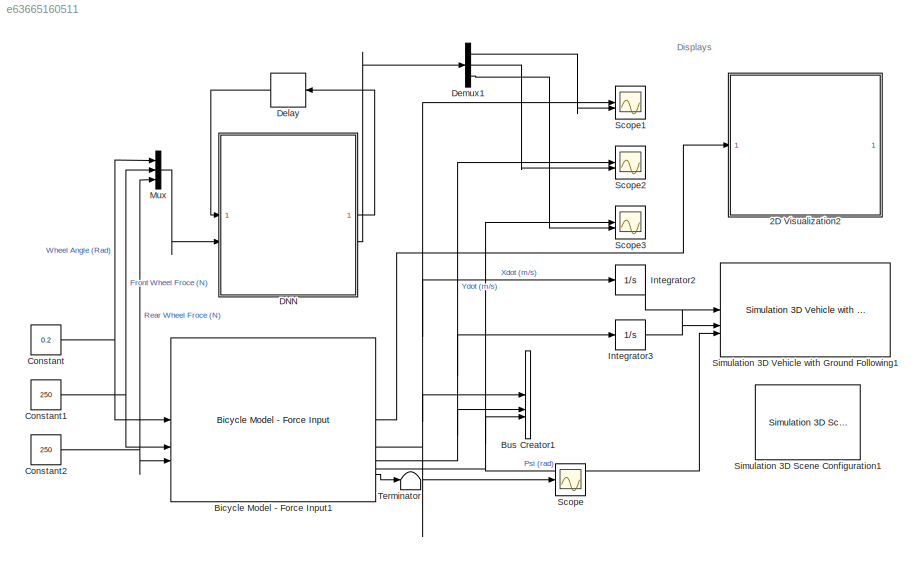
MODEL slx_e63665160511
KIND model
CONFIG AbsTol = auto
CONFIG EnableMultiTasking = off
CONFIG FixedStep = 0.01
CONFIG MaxStep = auto
CONFIG MinStep = auto
CONFIG RelTol = 1e-3
CONFIG SampleTimeConstraint = Unconstrained
CONFIG SolverName = FixedStepAuto
CONFIG StartTime = 0.0
CONFIG StopTime = 10
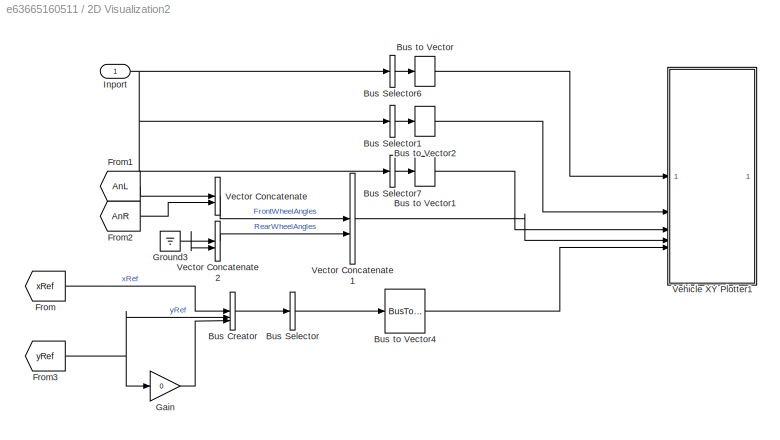
BLOCK [SubSystem] 2D Visualization2
BLOCK [BusCreator] 2D Visualization2/Bus Creator
  DisplayOption = bar
  InheritFromInputs = on
  Inputs = 3
BLOCK [BusSelector] 2D Visualization2/Bus Selector
  OutputAsBus = on
  OutputSignals = xRef,yRef,signal3
BLOCK [BusSelector] 2D Visualization2/Bus Selector1
  OutputAsBus = on
  OutputSignals = InertFrm.Cg.Ang.phi,InertFrm.Cg.Ang.theta,InertFrm.Cg.Ang.psi
BLOCK [BusSelector] 2D Visualization2/Bus Selector6
  OutputAsBus = on
  OutputSignals = InertFrm.Geom.Disp.X,InertFrm.Geom.Disp.Y,InertFrm.Geom.Disp.Z
BLOCK [BusSelector] 2D Visualization2/Bus Selector7
  OutputAsBus = on
  OutputSignals = InertFrm.Geom.Vel.Xdot,InertFrm.Geom.Vel.Ydot,InertFrm.Geom.Vel.Zdot
BLOCK [BusToVector] 2D Visualization2/Bus to Vector
BLOCK [BusToVector] 2D Visualization2/Bus to Vector1
BLOCK [BusToVector] 2D Visualization2/Bus to Vector2
BLOCK [BusToVector] 2D Visualization2/Bus to Vector4
BLOCK [From] 2D Visualization2/From
  GotoTag = xRef
BLOCK [From] 2D Visualization2/From1
  GotoTag = AnL
BLOCK [From] 2D Visualization2/From2
  GotoTag = AnR
BLOCK [From] 2D Visualization2/From3
  GotoTag = yRef
BLOCK [Gain] 2D Visualization2/Gain
  Gain = 0
BLOCK [Ground] 2D Visualization2/Ground3
BLOCK [Inport] 2D Visualization2/Inport
BLOCK [Concatenate] 2D Visualization2/Vector Concatenate
BLOCK [Concatenate] 2D Visualization2/Vector Concatenate1
BLOCK [Concatenate] 2D Visualization2/Vector Concatenate2
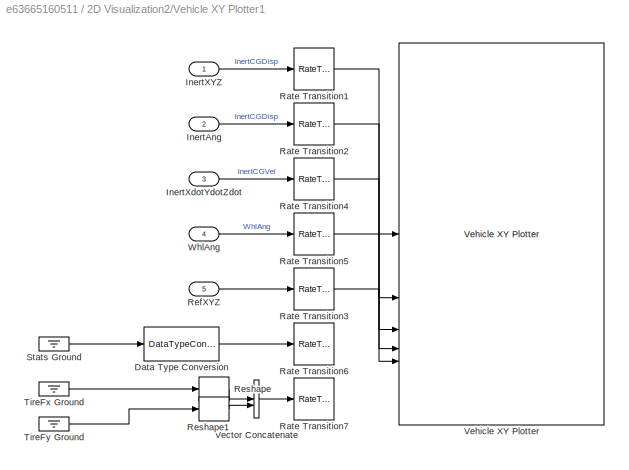
BLOCK [SubSystem] 2D Visualization2/Vehicle XY Plotter1
BLOCK [DataTypeConversion] 2D Visualization2/Vehicle XY Plotter1/Data Type Conversion
  OutDataTypeStr = double
  RndMeth = Floor
  SaturateOnIntegerOverflow = off
BLOCK [Inport] 2D Visualization2/Vehicle XY Plotter1/InertAng
  Port = 2
BLOCK [Inport] 2D Visualization2/Vehicle XY Plotter1/InertXYZ
BLOCK [Inport] 2D Visualization2/Vehicle XY Plotter1/InertXdotYdotZdot
  Port = 3
BLOCK [RateTransition] 2D Visualization2/Vehicle XY Plotter1/Rate Transition1
  Deterministic = off
  OutPortSampleTime = pltDT
BLOCK [RateTransition] 2D Visualization2/Vehicle XY Plotter1/Rate Transition2
  Deterministic = off
  OutPortSampleTime = pltDT
BLOCK [RateTransition] 2D Visualization2/Vehicle XY Plotter1/Rate Transition3
  Deterministic = off
  OutPortSampleTime = pltDT
BLOCK [RateTransition] 2D Visualization2/Vehicle XY Plotter1/Rate Transition4
  Deterministic = off
  OutPortSampleTime = pltDT
BLOCK [RateTransition] 2D Visualization2/Vehicle XY Plotter1/Rate Transition5
  Deterministic = off
  OutPortSampleTime = pltDT
BLOCK [RateTransition] 2D Visualization2/Vehicle XY Plotter1/Rate Transition6
  Deterministic = off
  OutPortSampleTime = pltDT
BLOCK [RateTransition] 2D Visualization2/Vehicle XY Plotter1/Rate Transition7
  Deterministic = off
  OutPortSampleTime = pltDT
BLOCK [Inport] 2D Visualization2/Vehicle XY Plotter1/RefXYZ
  Port = 5
BLOCK [Reshape] 2D Visualization2/Vehicle XY Plotter1/Reshape
  OutputDimensionality = Row vector (2-D)
BLOCK [Reshape] 2D Visualization2/Vehicle XY Plotter1/Reshape1
  OutputDimensionality = Row vector (2-D)
BLOCK [Ground] 2D Visualization2/Vehicle XY Plotter1/Stats Ground
BLOCK [Ground] 2D Visualization2/Vehicle XY Plotter1/TireFx Ground
BLOCK [Ground] 2D Visualization2/Vehicle XY Plotter1/TireFy Ground
BLOCK [Concatenate] 2D Visualization2/Vehicle XY Plotter1/Vector Concatenate
  Mode = Multidimensional array
BLOCK [Reference] 2D Visualization2/Vehicle XY Plotter1/Vehicle XY Plotter  REF=vehdynlibviscommon/Vehicle XY Plotter
  SourceBlock = vehdynlibviscommon/Vehicle XY Plotter
  SourceType = Vehicle XY Plotter
BLOCK [Inport] 2D Visualization2/Vehicle XY Plotter1/WhlAng
  Port = 4
BLOCK [Reference] Bicycle Model - Force Input1  REF=autolibshared/Bicycle Model - Force Input
  LibrarySourceBlock = drivingscenarioandsensors/Bicycle Model - Force Input
  SourceBlock = autolibshared/Bicycle Model - Force Input
  SourceType = Vehicle Body 3DOF Lateral
BLOCK [BusCreator] Bus Creator1
  DisplayOption = bar
  InheritFromInputs = on
  Inputs = 3
BLOCK [Constant] Constant
  Value = 0.2
BLOCK [Constant] Constant1
  Value = 250
BLOCK [Constant] Constant2
  Value = 250
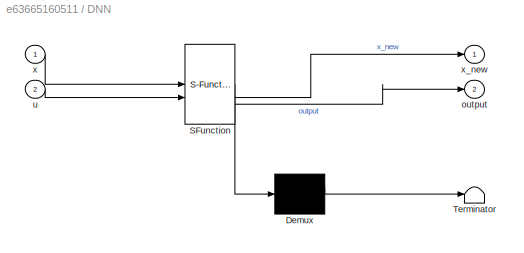
BLOCK [SubSystem] DNN
  ErrorFcn = Stateflow.Translate.translate
  PermitHierarchicalResolution = ExplicitOnly
  SFBlockType = MATLAB Function
  TreatAsAtomicUnit = on
BLOCK [Demux] DNN/ Demux 
  Outputs = 1
BLOCK [S-Function] DNN/ SFunction 
  EnableBusSupport = on
  FunctionName = sf_sfun
  PortCounts = [2 3]
  SFcnIsStateOwnerBlock = off
  SFunctionDeploymentMode = off
  Tag = Stateflow S-Function 2
BLOCK [Terminator] DNN/ Terminator 
BLOCK [Outport] DNN/output
  Port = 2
BLOCK [Inport] DNN/u
  Port = 2
BLOCK [Inport] DNN/x
BLOCK [Outport] DNN/x_new
BLOCK [Delay] Delay
  DelayLength = 1
  InitialCondition = zeros(4,1)
  InputPortMap = u0
  NameLocation = top
BLOCK [Demux] Demux1
  Outputs = 3
BLOCK [Integrator] Integrator2
BLOCK [Integrator] Integrator3
BLOCK [Mux] Mux
  DisplayOption = bar
  Inputs = 3
BLOCK [Scope] Scope
  Floating = off
  NumInputPorts = 1
  ScopeSpecificationString = Simulink.scopes.TimeScopeBlockCfg('CurrentConfiguration', extmgr.ConfigurationSet(extmgr.Configuration('Core','General UI',true),extmgr.Configuration('Core','Source UI',true),extmgr.Configuration('Sources','WiredSimulink',true),extmgr.Configuration('Visuals','Time Domain',true,'SerializedDisplays',{struct('MinYLimReal','-0.24437','MaxYLimReal','2.19937','YLabelReal','','MinYLimMag','0.00000','MaxY...<+1385ch>
BLOCK [Scope] Scope1
  Floating = off
  NumInputPorts = 2
  ScopeSpecificationString = Simulink.scopes.TimeScopeBlockCfg('CurrentConfiguration', extmgr.ConfigurationSet(extmgr.Configuration('Core','General UI',true),extmgr.Configuration('Core','Source UI',true),extmgr.Configuration('Sources','WiredSimulink',true,'DataLoggingVariableName','ScopeData1'),extmgr.Configuration('Visuals','Time Domain',true,'SerializedDisplays',{struct('MinYLimReal','-0.31533','MaxYLimReal','2.81559','YLab...<+1448ch>
BLOCK [Scope] Scope2
  Floating = off
  NumInputPorts = 2
  ScopeSpecificationString = Simulink.scopes.TimeScopeBlockCfg('CurrentConfiguration', extmgr.ConfigurationSet(extmgr.Configuration('Core','General UI',true),extmgr.Configuration('Core','Source UI',true),extmgr.Configuration('Sources','WiredSimulink',true,'DataLoggingVariableName','ScopeData2'),extmgr.Configuration('Visuals','Time Domain',true,'SerializedDisplays',{struct('MinYLimReal','-0.12208','MaxYLimReal','0.29162','YLab...<+1435ch>
BLOCK [Scope] Scope3
  Floating = off
  NumInputPorts = 2
  ScopeSpecificationString = Simulink.scopes.TimeScopeBlockCfg('CurrentConfiguration', extmgr.ConfigurationSet(extmgr.Configuration('Core','General UI',true),extmgr.Configuration('Core','Source UI',true),extmgr.Configuration('Sources','WiredSimulink',true,'DataLoggingVariableName','ScopeData3'),extmgr.Configuration('Visuals','Time Domain',true,'SerializedDisplays',{struct('MinYLimReal','-0.11072','MaxYLimReal','0.98744','YLab...<+1421ch>
BLOCK [Reference] Simulation 3D Scene Configuration1  REF=sim3dlib/Simulation 3D Scene Configuration
  Priority = 0
  SourceBlock = sim3dlib/Simulation 3D Scene Configuration
  SourceType = Simulation 3D Scene Configuration
BLOCK [Reference] Simulation 3D Vehicle with Ground Following1  REF=sim3dautolib/Simulation 3D Vehicle with Ground Following VDBS
  LibrarySourceBlock = vehdynlibsim3d/Simulation 3D Vehicle with Ground Following
  Priority = -1
  SourceBlock = sim3dautolib/Simulation 3D Vehicle with Ground Following VDBS
  SourceType = Simulation 3D Vehicle with Ground Following
BLOCK [Terminator] Terminator
ANNOTATION (root): Displays
LINE 2D Visualization2/Bus Creator:1 -> 2D Visualization2/Bus Selector:1
LINE 2D Visualization2/Bus Selector1:1 -> 2D Visualization2/Bus to Vector2:1
LINE 2D Visualization2/Bus Selector6:1 -> 2D Visualization2/Bus to Vector:1
LINE 2D Visualization2/Bus Selector7:1 -> 2D Visualization2/Bus to Vector1:1
LINE 2D Visualization2/Bus Selector:1 -> 2D Visualization2/Bus to Vector4:1
LINE 2D Visualization2/Bus to Vector1:1 -> 2D Visualization2/Vehicle XY Plotter1:3
LINE 2D Visualization2/Bus to Vector2:1 -> 2D Visualization2/Vehicle XY Plotter1:2
LINE 2D Visualization2/Bus to Vector4:1 -> 2D Visualization2/Vehicle XY Plotter1:5
LINE 2D Visualization2/Bus to Vector:1 -> 2D Visualization2/Vehicle XY Plotter1:1
LINE 2D Visualization2/From1:1 -> 2D Visualization2/Vector Concatenate:1
LINE 2D Visualization2/From2:1 -> 2D Visualization2/Vector Concatenate:2
NET 2D Visualization2/From3:1 -> 2D Visualization2/Bus Creator:2, 2D Visualization2/Gain:1
LINE 2D Visualization2/From:1 -> 2D Visualization2/Bus Creator:1
LINE 2D Visualization2/Gain:1 -> 2D Visualization2/Bus Creator:3
NET 2D Visualization2/Ground3:1 -> 2D Visualization2/Vector Concatenate2:1, 2D Visualization2/Vector Concatenate2:2
NET 2D Visualization2/Inport:1 -> 2D Visualization2/Bus Selector1:1, 2D Visualization2/Bus Selector6:1, 2D Visualization2/Bus Selector7:1
LINE 2D Visualization2/Vector Concatenate1:1 -> 2D Visualization2/Vehicle XY Plotter1:4
LINE 2D Visualization2/Vector Concatenate2:1 -> 2D Visualization2/Vector Concatenate1:2
LINE 2D Visualization2/Vector Concatenate:1 -> 2D Visualization2/Vector Concatenate1:1
LINE 2D Visualization2/Vehicle XY Plotter1/Data Type Conversion:1 -> 2D Visualization2/Vehicle XY Plotter1/Rate Transition6:1
LINE 2D Visualization2/Vehicle XY Plotter1/InertAng:1 -> 2D Visualization2/Vehicle XY Plotter1/Rate Transition2:1
LINE 2D Visualization2/Vehicle XY Plotter1/InertXYZ:1 -> 2D Visualization2/Vehicle XY Plotter1/Rate Transition1:1
LINE 2D Visualization2/Vehicle XY Plotter1/InertXdotYdotZdot:1 -> 2D Visualization2/Vehicle XY Plotter1/Rate Transition4:1
LINE 2D Visualization2/Vehicle XY Plotter1/Rate Transition1:1 -> 2D Visualization2/Vehicle XY Plotter1/Vehicle XY Plotter:1
LINE 2D Visualization2/Vehicle XY Plotter1/Rate Transition2:1 -> 2D Visualization2/Vehicle XY Plotter1/Vehicle XY Plotter:2
LINE 2D Visualization2/Vehicle XY Plotter1/Rate Transition3:1 -> 2D Visualization2/Vehicle XY Plotter1/Vehicle XY Plotter:5
LINE 2D Visualization2/Vehicle XY Plotter1/Rate Transition4:1 -> 2D Visualization2/Vehicle XY Plotter1/Vehicle XY Plotter:3
LINE 2D Visualization2/Vehicle XY Plotter1/Rate Transition5:1 -> 2D Visualization2/Vehicle XY Plotter1/Vehicle XY Plotter:4
LINE 2D Visualization2/Vehicle XY Plotter1/RefXYZ:1 -> 2D Visualization2/Vehicle XY Plotter1/Rate Transition3:1
LINE 2D Visualization2/Vehicle XY Plotter1/Reshape1:1 -> 2D Visualization2/Vehicle XY Plotter1/Vector Concatenate:2
LINE 2D Visualization2/Vehicle XY Plotter1/Reshape:1 -> 2D Visualization2/Vehicle XY Plotter1/Vector Concatenate:1
LINE 2D Visualization2/Vehicle XY Plotter1/Stats Ground:1 -> 2D Visualization2/Vehicle XY Plotter1/Data Type Conversion:1
LINE 2D Visualization2/Vehicle XY Plotter1/TireFx Ground:1 -> 2D Visualization2/Vehicle XY Plotter1/Reshape:1
LINE 2D Visualization2/Vehicle XY Plotter1/TireFy Ground:1 -> 2D Visualization2/Vehicle XY Plotter1/Reshape1:1
LINE 2D Visualization2/Vehicle XY Plotter1/Vector Concatenate:1 -> 2D Visualization2/Vehicle XY Plotter1/Rate Transition7:1
LINE 2D Visualization2/Vehicle XY Plotter1/WhlAng:1 -> 2D Visualization2/Vehicle XY Plotter1/Rate Transition5:1
LINE Bicycle Model - Force Input1:1 -> 2D Visualization2:1
NET Bicycle Model - Force Input1:2 -> Bus Creator1:1, Integrator2:1, Scope1:1, Scope:1
NET Bicycle Model - Force Input1:3 -> Bus Creator1:2, Integrator3:1, Scope2:1
NET Bicycle Model - Force Input1:4 -> Bus Creator1:3, Scope3:1, Simulation 3D Vehicle with Ground Following1:3
LINE Bicycle Model - Force Input1:5 -> Terminator:1
NET Constant1:1 -> Bicycle Model - Force Input1:2, Mux:2
NET Constant2:1 -> Bicycle Model - Force Input1:3, Mux:3
NET Constant:1 -> Bicycle Model - Force Input1:1, Mux:1
LINE DNN:1 -> Delay:1
LINE DNN:2 -> Demux1:1
LINE Delay:1 -> DNN:1
LINE Demux1:1 -> Scope1:2
LINE Demux1:2 -> Scope2:2
LINE Demux1:3 -> Scope3:2
LINE Integrator2:1 -> Simulation 3D Vehicle with Ground Following1:1
LINE Integrator3:1 -> Simulation 3D Vehicle with Ground Following1:2
LINE Mux:1 -> DNN:2
note: NET lines group one-source signal fan-out (src -> all destinations, sorted); 1:1 wires keep LINE
CHART DNN states=1 transitions=1
  STATE_LABEL 'eML_blk_kernel()'
  STATE_LABEL 'SCRIPT:\nfunction [x_new,output] = Model_ANN(x, u)\n\nW_fc1=[0.010363,0.048655,0.028321,-0.073723,0.051033,-0.038552,-0.015637,0.014993,-0.013173,0.085282,0.01216,-0.007005;\n    -0.004934,-0.020975,-0.033283,0.053837,0.031508,-0.016286,0.084686,0.015995,-0.015488,0.054382,-0.022124,-0.021498;\n    -0.003032,-0.023388,0.002723,0.035094,-0.09204,0.017601,-0.006136,-0.017161,0.007538,0.019574,-0.01113,0....<+3608ch>'
CHART  states=0 transitions=0
